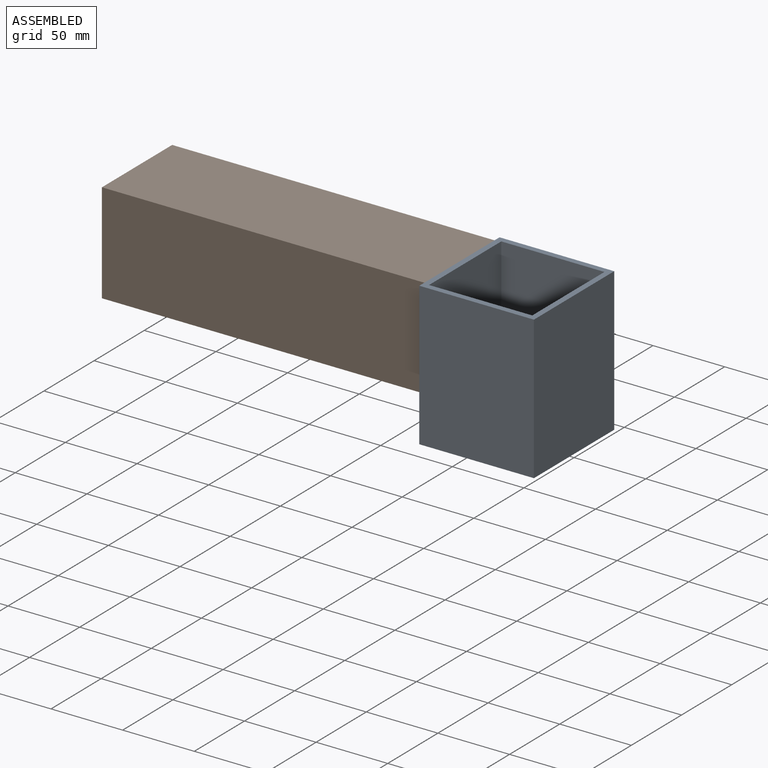
[diagram: assembled view]
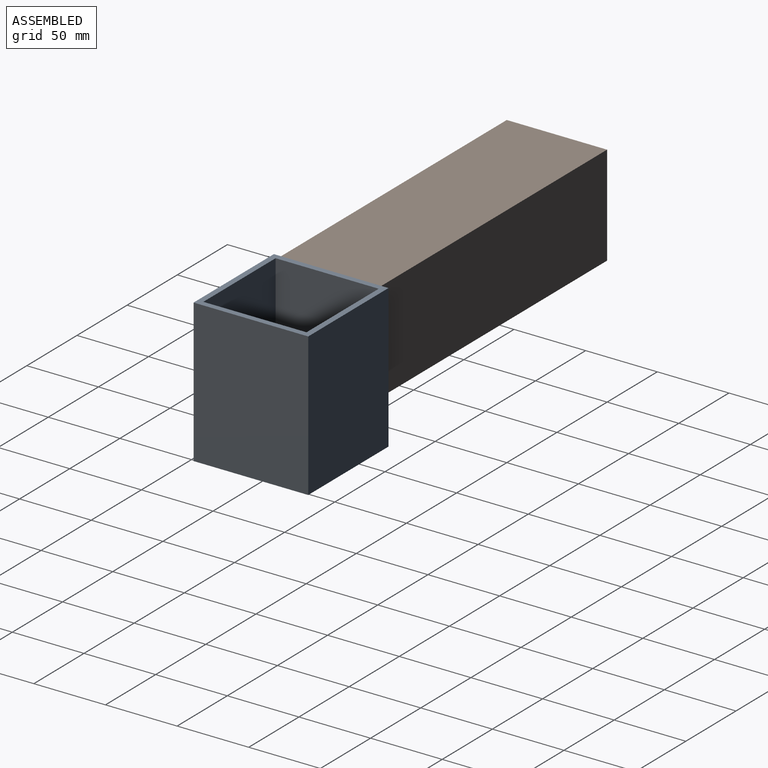
[diagram: assembled view, second angle]
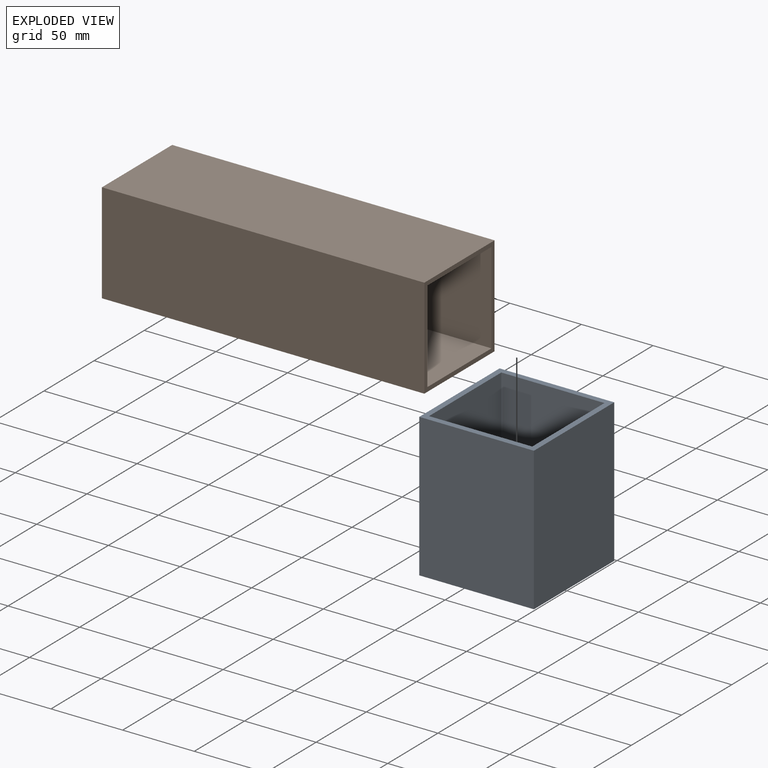
[diagram: exploded view]
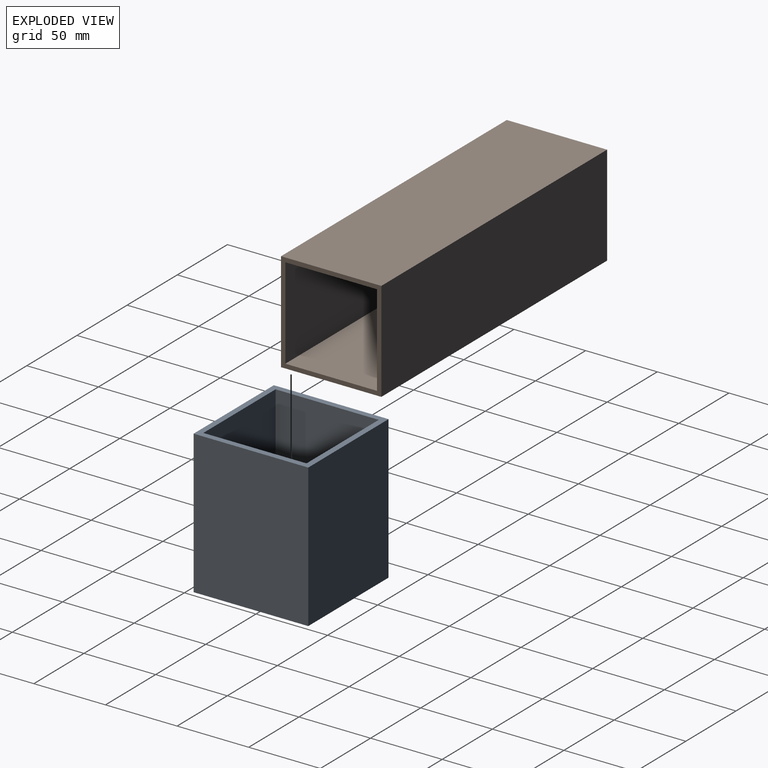
[diagram: exploded view, second angle]
ASSEMBLY  parts=2 mates=2
PART A: 10 faces, bbox 80x80x100 mm
  f0: plane 100x80mm, normal (0,1,0), area 8000mm2, adj f1,f7,f8,f9
  f1: plane 100x80mm, normal (1,0,0), area 8000mm2, adj f0,f2,f8,f9
  f2: plane 100x80mm, normal (0,-1,0), area 8000mm2, adj f1,f7,f8,f9
  f3: plane 100x72mm, normal (0,-1,0), area 7200mm2, adj f4,f6,f8,f9
  f4: plane 100x72mm, normal (1,0,0), area 7200mm2, adj f3,f5,f8,f9
  f5: plane 100x72mm, normal (0,1,0), area 7200mm2, adj f4,f6,f8,f9
  f6: plane 100x72mm, normal (-1,0,0), area 7200mm2, adj f3,f5,f8,f9
  f7: plane 100x80mm, normal (-1,0,0), area 8000mm2, adj f0,f2,f8,f9
  f8: plane 80x80mm, normal (0,0,-1), area 1216mm2, adj f0,f1,f2,f3,f4,f5,f6,f7
  f9: plane 80x80mm, normal (0,0,1), area 1216mm2, adj f0,f1,f2,f3,f4,f5,f6,f7
PART B: 10 faces, bbox 225x70x70 mm
  f0: plane 225x64mm, normal (0,1,0), area 14400mm2, adj f1,f7,f8,f9
  f1: plane 225x64mm, normal (0,0,-1), area 14400mm2, adj f0,f2,f8,f9
  f2: plane 225x64mm, normal (0,-1,0), area 14400mm2, adj f1,f7,f8,f9
  f3: plane 225x70mm, normal (0,1,0), area 15750mm2, adj f4,f6,f8,f9
  f4: plane 225x70mm, normal (0,0,1), area 15750mm2, adj f3,f5,f8,f9
  f5: plane 225x70mm, normal (0,-1,0), area 15750mm2, adj f4,f6,f8,f9
  f6: plane 225x70mm, normal (0,0,-1), area 15750mm2, adj f3,f5,f8,f9
  f7: plane 225x64mm, normal (0,0,1), area 14400mm2, adj f0,f2,f8,f9
  f8: plane 70x70mm, normal (1,0,0), area 804mm2, adj f0,f1,f2,f3,f4,f5,f6,f7
  f9: plane 70x70mm, normal (-1,0,0), area 804mm2, adj f0,f1,f2,f3,f4,f5,f6,f7
PLACE A at identity
PLACE B at identity
MATE revolute B.f9 <-> B.f8  axis (-1,0,0) through (0,0,0)mm
MATE fastened B.f4 <-> A.f9  axis (0,0,1) through (225,0,35)mm
